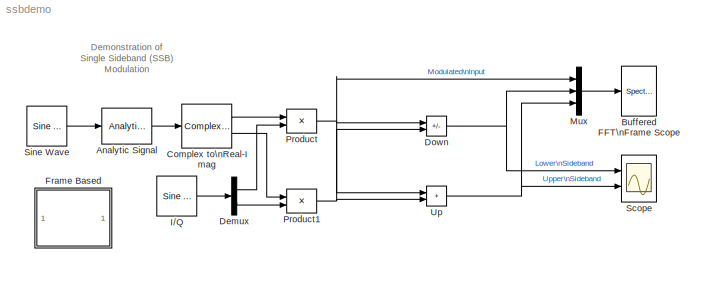
MODEL ssbdemo
KIND model
CONFIG AbsTol = 1e-6
CONFIG FixedStep = auto
CONFIG MaxStep = auto
CONFIG MinStep = auto
CONFIG RelTol = 1e-3
CONFIG Solver = FixedStepDiscrete
CONFIG SolverMode = SingleTasking
CONFIG StartTime = 0.0
CONFIG StopTime = 99999999
BLOCK [Reference] Analytic Signal  REF=dspxfrm3/Analytic Signal
  N = 100
  Ports = [1, 1]
  SourceBlock = dspxfrm3/Analytic Signal
  SourceType = Analytic Signal
BLOCK [Reference] Buffered FFT\nFrame Scope  REF=dspsnks3/Spectrum\nScope
  AxisGrid = on
  AxisLegend = on
  AxisProperties = on
  AxisZoom = off
  BufferSize = 128
  DisplayProperties = off
  Domain = Frequency
  FFTlength = 128
  FigPos = [399 256 382 346]
  FrameNumber = off
  HorizSpan = 1
  InheritXIncr = on
  LineColors = |[1 0 1]|[0 0 1]
  LineProperties = off
  Memory = off
  OpenScopeAtSimStart = on
  OpenScopeImmediately = off
  Overlap = 64
  Ports = [1]
  ScopeProperties = off
  SourceBlock = dspsnks3/Spectrum\nScope
  SourceType = Spectrum Scope
  UseBuffer = on
  XIncr = 1
  XLabel = Samples
  XRange = [0...Fs/2]
  XUnits = Hertz
  YLabel = Magnitude, dB
  YMax = 13.9194893778784
  YMin = -124.156289978703
  YUnits = dB
  inpFftLenInherit = off
  numAvg = 1
BLOCK [ComplexToRealImag] Complex to\nReal-Imag
  Output = RealAndImag
  Ports = [1, 2]
BLOCK [Demux] Demux
  BusSelectionMode = off
  Outputs = 2
  Ports = [1, 2]
BLOCK [Sum] Down
  IconShape = rectangular
  Inputs = -+
  Ports = [2, 1]
  SaturateOnIntegerOverflow = on
BLOCK [SubSystem] Frame Based
  MaskDisplay = disp('Frame-based\\nVersion')
  MaskIconFrame = on
  MaskIconOpaque = on
  MaskIconRotate = none
  MaskIconUnits = autoscale
  OpenFcn = ssbdemof;
  Ports = []
  RTWFcnNameOpts = Auto
  RTWFileNameOpts = Auto
  RTWSystemCode = Auto
  ShowPortLabels = on
  TreatAsAtomicUnit = off
BLOCK [Reference] I//Q  REF=dspsrcs3/Sine Wave
  Amplitude = 1
  CompMethod = Trigonometric Fcn
  Frequency = 2
  OutComplex = Real
  Phase = [0 pi/2]
  Ports = [0, 1]
  ResetState = Restart at time zero
  SampleMode = Discrete
  SampleTime = 0.1
  SamplesPerFrame = 1
  SourceBlock = dspsrcs3/Sine Wave
  SourceType = Sine Wave
  TableSize = Speed
BLOCK [Mux] Mux
  BusCreatorMode = off
  DisplayOption = bar
  Inputs = 3
  Ports = [3, 1]
BLOCK [Product] Product
  Inputs = 2
  Multiplication = Element-wise(.*)
  Ports = [2, 1]
  SaturateOnIntegerOverflow = on
BLOCK [Product] Product1
  Inputs = 2
  Multiplication = Element-wise(.*)
  Ports = [2, 1]
  SaturateOnIntegerOverflow = on
BLOCK [Scope] Scope
  DataFormat = Array
  Decimation = 1
  Floating = off
  Grid = on
  LimitDataPoints = on
  MaxDataPoints = 5000
  NumInputPorts = 2
  Ports = [2]
  SampleInput = off
  SampleTime = 0
  SaveName = ScopeData
  SaveToWorkspace = off
  TickLabels = OneTimeTick
  TimeRange = 3
  YMax = 1.2~1.2
  YMin = -1.2~-1.2
  ZoomMode = xonly
BLOCK [Reference] Sine Wave  REF=dspsrcs3/Sine Wave
  Amplitude = 1
  CompMethod = Trigonometric Fcn
  Frequency = 0.5
  OutComplex = Real
  Phase = 0
  Ports = [0, 1]
  ResetState = Restart at time zero
  SampleMode = Discrete
  SampleTime = 0.1
  SamplesPerFrame = 1
  SourceBlock = dspsrcs3/Sine Wave
  SourceType = Sine Wave
  TableSize = Speed
BLOCK [Sum] Up
  IconShape = rectangular
  Inputs = ++
  Ports = [2, 1]
  SaturateOnIntegerOverflow = on
LINE Analytic Signal:1 -> Complex to\nReal-Imag:1
LINE Complex to\nReal-Imag:1 -> Product:1
LINE Complex to\nReal-Imag:2 -> Product1:1
LINE Demux:1 -> Product:2
LINE Demux:2 -> Product1:2
NET Down:1 -> Mux:2, Scope:1
LINE I//Q:1 -> Demux:1
LINE Mux:1 -> Buffered FFT\nFrame Scope:1
NET Product1:1 -> Down:2, Up:2
NET Product:1 -> Down:1, Mux:1, Up:1
LINE Sine Wave:1 -> Analytic Signal:1
NET Up:1 -> Mux:3, Scope:2
note: NET lines group one-source signal fan-out (src -> all destinations, sorted); 1:1 wires keep LINE
